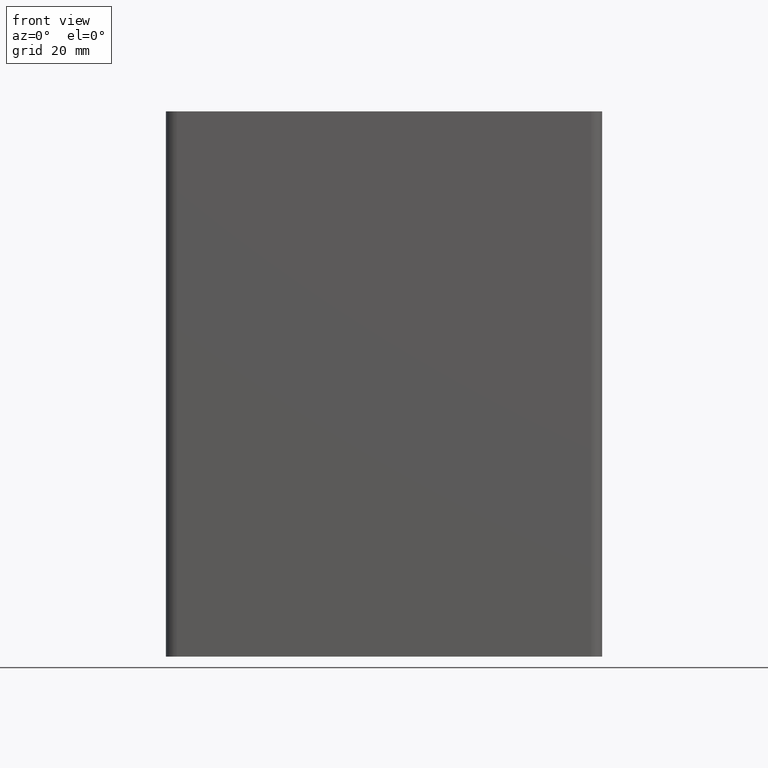
[diagram: clean part render]
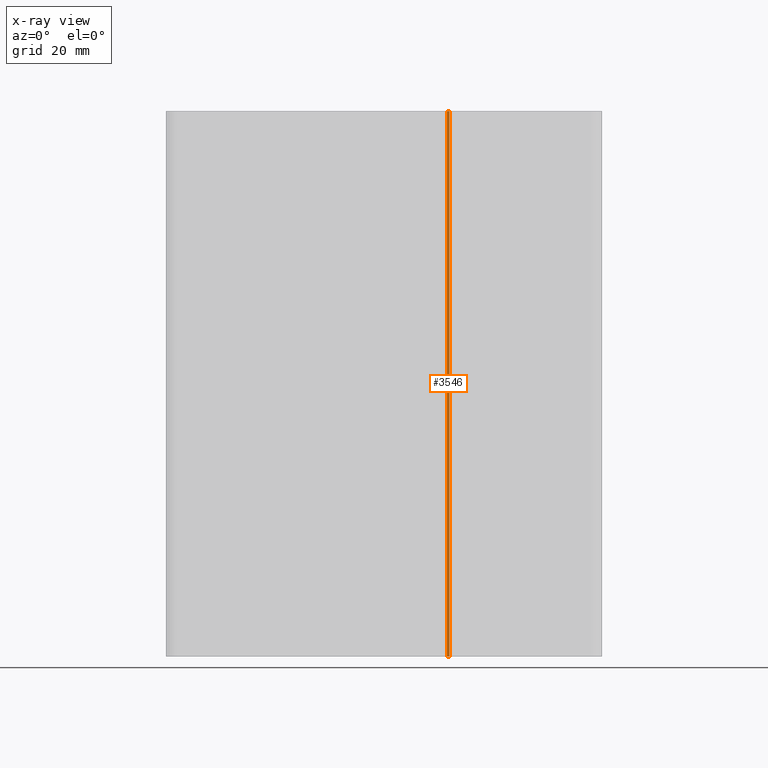
[diagram: x-ray — body ghosted, one internal face saturated and labeled with its STEP entity id]
A machine part, front view, then the same camera in x-ray: the body is ghosted and one INTERNAL B-rep face — a face not visible from any outside direction — is saturated and labeled: STEP entity #3546.
In plain terms, the highlighted planar face has unit normal (0, 1, 0).
Its self-contained STEP definition (entity closure, byte-faithful):
#70=PLANE('',#3798);
#198=FACE_OUTER_BOUND('',#381,.T.);
#381=EDGE_LOOP('',(#2581,#2582,#2583,#2584));
#648=LINE('',#5504,#1010);
#650=LINE('',#5508,#1012);
#651=LINE('',#5510,#1013);
#652=LINE('',#5511,#1014);
#1010=VECTOR('',#4424,100.);
#1012=VECTOR('',#4428,0.499999999999994);
#1013=VECTOR('',#4429,100.);
#1014=VECTOR('',#4430,0.499999999999994);
#1551=VERTEX_POINT('',#5501);
#1552=VERTEX_POINT('',#5503);
#1553=VERTEX_POINT('',#5507);
#1554=VERTEX_POINT('',#5509);
#1976=EDGE_CURVE('',#1552,#1551,#648,.T.);
#1978=EDGE_CURVE('',#1553,#1551,#650,.T.);
#1979=EDGE_CURVE('',#1554,#1553,#651,.T.);
#1980=EDGE_CURVE('',#1552,#1554,#652,.T.);
#2581=ORIENTED_EDGE('',*,*,#1978,.F.);
#2582=ORIENTED_EDGE('',*,*,#1979,.F.);
#2583=ORIENTED_EDGE('',*,*,#1980,.F.);
#2584=ORIENTED_EDGE('',*,*,#1976,.T.);
#3546=ADVANCED_FACE('',(#198),#70,.F.);
#3798=AXIS2_PLACEMENT_3D('',#5506,#4426,#4427);
#4424=DIRECTION('',(0.,0.,1.));
#4426=DIRECTION('center_axis',(0.,1.,0.));
#4427=DIRECTION('ref_axis',(-1.,0.,0.));
#4428=DIRECTION('',(1.,0.,0.));
#4429=DIRECTION('',(0.,0.,1.));
#4430=DIRECTION('',(-1.,0.,0.));
#5501=CARTESIAN_POINT('',(12.,17.,100.));
#5503=CARTESIAN_POINT('',(12.,17.,0.));
#5504=CARTESIAN_POINT('',(12.,17.,0.));
#5506=CARTESIAN_POINT('Origin',(12.,17.,0.));
#5507=CARTESIAN_POINT('',(11.5,17.,100.));
#5508=CARTESIAN_POINT('',(6.,17.,100.));
#5509=CARTESIAN_POINT('',(11.5,17.,0.));
#5510=CARTESIAN_POINT('',(11.5,17.,0.));
#5511=CARTESIAN_POINT('',(6.,17.,0.));